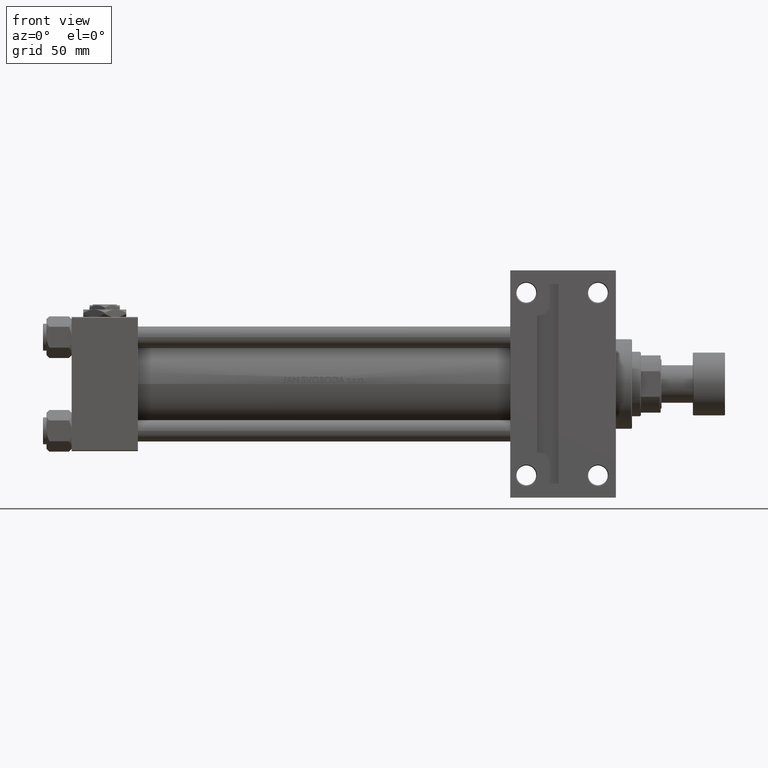
[diagram: clean part render]
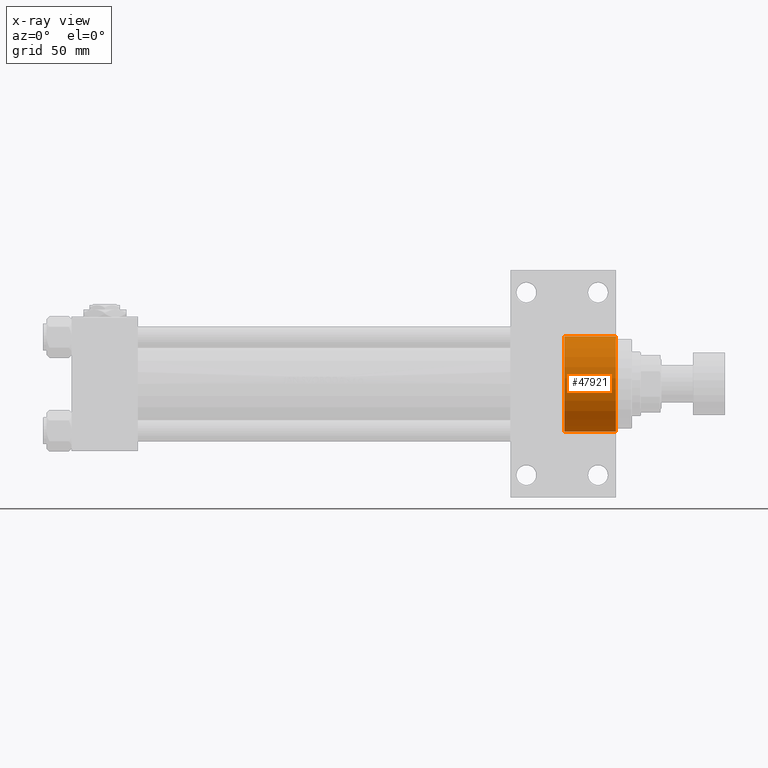
[diagram: x-ray — body ghosted, one internal face saturated and labeled with its STEP entity id]
A machine part, front view, then the same camera in x-ray: the body is ghosted and one INTERNAL B-rep face — a face not visible from any outside direction — is saturated and labeled: STEP entity #47921.
In plain terms, the highlighted cylindrical surface (partial cylindrical patch) has radius 26.5 mm, axis along (-1, 0, 0).
Its self-contained STEP definition (entity closure, byte-faithful):
#671 = DIRECTION ( 'NONE',  ( -0.000000000000000000, -0.000000000000000000, -1.000000000000000000 ) ) ;
#1526 = CARTESIAN_POINT ( 'NONE',  ( 0.000000000000000000, 0.000000000000000000, 0.000000000000000000 ) ) ;
#2142 = CARTESIAN_POINT ( 'NONE',  ( 0.000000000000000000, 0.000000000000000000, 28.69999999999999929 ) ) ;
#3145 = EDGE_CURVE ( 'NONE', #28299, #5248, #31125, .T. ) ;
#5248 = VERTEX_POINT ( 'NONE', #36816 ) ;
#7677 = DIRECTION ( 'NONE',  ( -1.000000000000000000, 0.000000000000000000, 0.000000000000000000 ) ) ;
#8348 = ORIENTED_EDGE ( 'NONE', *, *, #38829, .F. ) ;
#8601 = VECTOR ( 'NONE', #32829, 1000.000000000000000 ) ;
#9137 = DIRECTION ( 'NONE',  ( -0.000000000000000000, -0.000000000000000000, -1.000000000000000000 ) ) ;
#13545 = CARTESIAN_POINT ( 'NONE',  ( -26.50000000000000355, 0.000000000000000000, 28.69999999999999929 ) ) ;
#16032 = DIRECTION ( 'NONE',  ( 0.000000000000000000, 0.000000000000000000, 1.000000000000000000 ) ) ;
#17152 = CARTESIAN_POINT ( 'NONE',  ( 26.50000000000000355, 3.245314017740486554E-15, 28.69999999999999929 ) ) ;
#20731 = CARTESIAN_POINT ( 'NONE',  ( 26.50000000000000355, 3.245314017740486554E-15, 28.69999999999999929 ) ) ;
#23352 = DIRECTION ( 'NONE',  ( 1.000000000000000000, 0.000000000000000000, 0.000000000000000000 ) ) ;
#23753 = EDGE_CURVE ( 'NONE', #33044, #36805, #37989, .T. ) ;
#27410 = LINE ( 'NONE', #13545, #8601 ) ;
#28299 = VERTEX_POINT ( 'NONE', #37813 ) ;
#31125 = CIRCLE ( 'NONE', #42347, 26.50000000000000355 ) ;
#31241 = CYLINDRICAL_SURFACE ( 'NONE', #46513, 26.50000000000000355 ) ;
#32829 = DIRECTION ( 'NONE',  ( -0.000000000000000000, -0.000000000000000000, -1.000000000000000000 ) ) ;
#33044 = VERTEX_POINT ( 'NONE', #20731 ) ;
#33649 = ORIENTED_EDGE ( 'NONE', *, *, #41020, .T. ) ;
#35066 = DIRECTION ( 'NONE',  ( 1.000000000000000000, 0.000000000000000000, 0.000000000000000000 ) ) ;
#35116 = DIRECTION ( 'NONE',  ( 0.000000000000000000, 0.000000000000000000, 1.000000000000000000 ) ) ;
#36805 = VERTEX_POINT ( 'NONE', #45003 ) ;
#36816 = CARTESIAN_POINT ( 'NONE',  ( -26.50000000000000355, 0.000000000000000000, 0.000000000000000000 ) ) ;
#37813 = CARTESIAN_POINT ( 'NONE',  ( 26.50000000000000355, 3.245314017740486554E-15, 0.000000000000000000 ) ) ;
#37989 = CIRCLE ( 'NONE', #47591, 26.50000000000000355 ) ;
#38829 = EDGE_CURVE ( 'NONE', #36805, #5248, #27410, .T. ) ;
#39983 = LINE ( 'NONE', #17152, #42292 ) ;
#41020 = EDGE_CURVE ( 'NONE', #33044, #28299, #39983, .T. ) ;
#42038 = CARTESIAN_POINT ( 'NONE',  ( 0.000000000000000000, 0.000000000000000000, 28.69999999999999929 ) ) ;
#42292 = VECTOR ( 'NONE', #9137, 1000.000000000000000 ) ;
#42347 = AXIS2_PLACEMENT_3D ( 'NONE', #1526, #35116, #23352 ) ;
#42801 = ORIENTED_EDGE ( 'NONE', *, *, #23753, .F. ) ;
#45003 = CARTESIAN_POINT ( 'NONE',  ( -26.50000000000000355, 0.000000000000000000, 28.69999999999999929 ) ) ;
#46296 = FACE_OUTER_BOUND ( 'NONE', #47642, .T. ) ;
#46513 = AXIS2_PLACEMENT_3D ( 'NONE', #42038, #671, #7677 ) ;
#47591 = AXIS2_PLACEMENT_3D ( 'NONE', #2142, #16032, #35066 ) ;
#47642 = EDGE_LOOP ( 'NONE', ( #42801, #33649, #48668, #8348 ) ) ;
#47921 = ADVANCED_FACE ( 'NONE', ( #46296 ), #31241, .T. ) ;
#48668 = ORIENTED_EDGE ( 'NONE', *, *, #3145, .T. ) ;